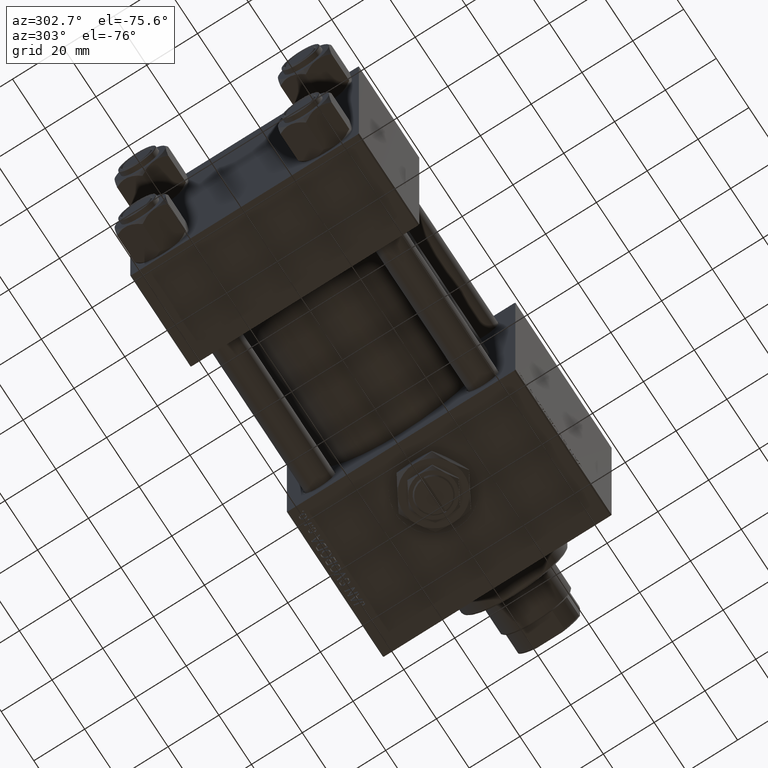
[diagram: clean part render]
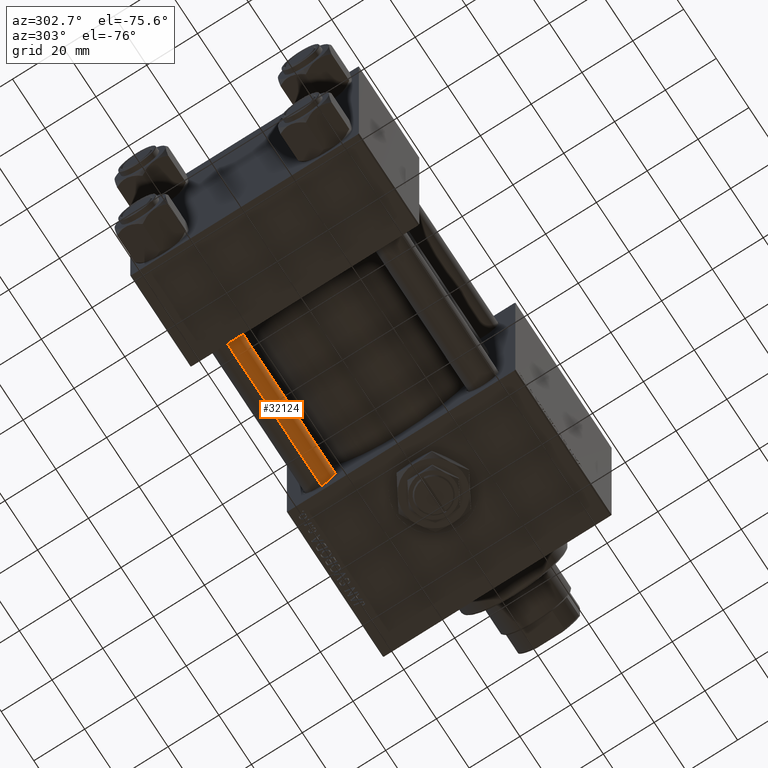
[diagram: same view with one face highlighted and labeled with its STEP entity id]
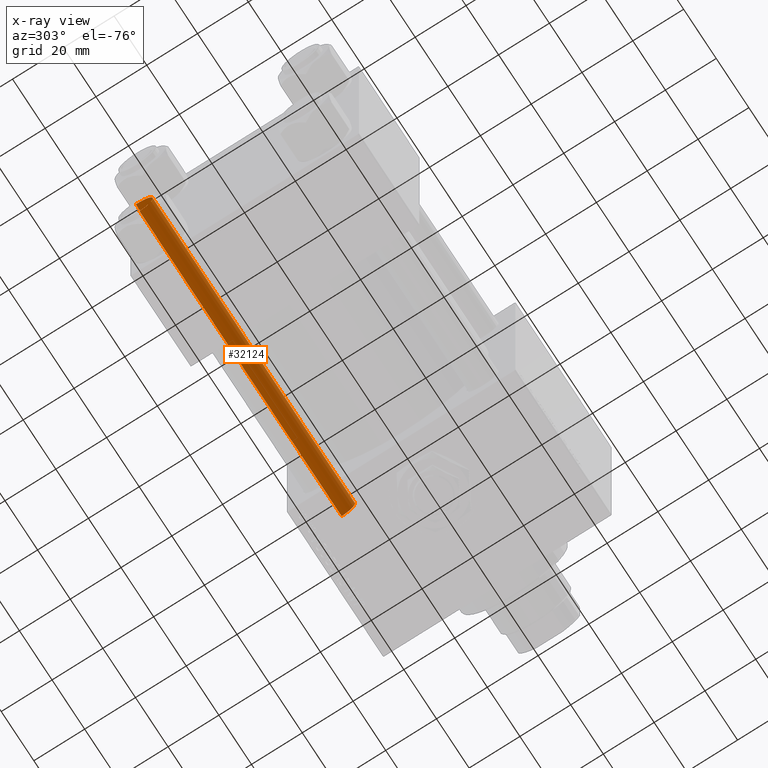
[diagram: x-ray of the same camera — body ghosted, the highlighted face saturated]
A machine part, auxiliary view. The second image highlights one B-rep face of the part: STEP entity #32124.
The next image is the same camera in x-ray: the body ghosted, the highlighted face saturated — about 0% of this face is hidden behind the body in this view.
In plain terms, the highlighted cylindrical surface (edge-blend (fillet) strip) has radius 6 mm, axis along (1, -0, 0).
Its self-contained STEP definition (entity closure, byte-faithful):
#3889 = CARTESIAN_POINT ( 'NONE',  ( 6.000000000000000888, 7.347880794884120722E-16, 125.0000000000000000 ) ) ;
#3957 = FACE_OUTER_BOUND ( 'NONE', #28924, .T. ) ;
#4647 = CARTESIAN_POINT ( 'NONE',  ( -6.000000000000000888, 0.000000000000000000, 0.4999999999999865663 ) ) ;
#4950 = VERTEX_POINT ( 'NONE', #28180 ) ;
#8040 = ORIENTED_EDGE ( 'NONE', *, *, #19581, .T. ) ;
#8315 = VERTEX_POINT ( 'NONE', #4647 ) ;
#9021 = DIRECTION ( 'NONE',  ( -0.000000000000000000, -0.000000000000000000, 1.000000000000000000 ) ) ;
#9540 = DIRECTION ( 'NONE',  ( 1.000000000000000000, 0.000000000000000000, 0.000000000000000000 ) ) ;
#10227 = CARTESIAN_POINT ( 'NONE',  ( 6.000000000000000888, 7.347880794884120722E-16, 124.5000000000000000 ) ) ;
#12302 = LINE ( 'NONE', #3889, #45134 ) ;
#13304 = EDGE_CURVE ( 'NONE', #22390, #4950, #28891, .T. ) ;
#16550 = AXIS2_PLACEMENT_3D ( 'NONE', #37396, #9021, #9540 ) ;
#19581 = EDGE_CURVE ( 'NONE', #8315, #32826, #24945, .T. ) ;
#20001 = DIRECTION ( 'NONE',  ( -1.000000000000000000, 0.000000000000000000, 0.000000000000000000 ) ) ;
#20315 = DIRECTION ( 'NONE',  ( 1.000000000000000000, 0.000000000000000000, 0.000000000000000000 ) ) ;
#22390 = VERTEX_POINT ( 'NONE', #10227 ) ;
#22817 = CARTESIAN_POINT ( 'NONE',  ( -6.000000000000000888, 0.000000000000000000, 125.0000000000000000 ) ) ;
#24945 = CIRCLE ( 'NONE', #16550, 6.000000000000000888 ) ;
#28180 = CARTESIAN_POINT ( 'NONE',  ( -6.000000000000000888, 0.000000000000000000, 124.5000000000000000 ) ) ;
#28891 = CIRCLE ( 'NONE', #33101, 6.000000000000000888 ) ;
#28924 = EDGE_LOOP ( 'NONE', ( #47751, #44039, #34297, #8040 ) ) ;
#29401 = EDGE_CURVE ( 'NONE', #4950, #8315, #30708, .T. ) ;
#30708 = LINE ( 'NONE', #22817, #34786 ) ;
#31761 = DIRECTION ( 'NONE',  ( -0.000000000000000000, -0.000000000000000000, -1.000000000000000000 ) ) ;
#32085 = CARTESIAN_POINT ( 'NONE',  ( 6.000000000000000888, 7.347880794884120722E-16, 0.4999999999999865663 ) ) ;
#32124 = ADVANCED_FACE ( 'NONE', ( #3957 ), #44680, .T. ) ;
#32664 = DIRECTION ( 'NONE',  ( 0.000000000000000000, 0.000000000000000000, -1.000000000000000000 ) ) ;
#32826 = VERTEX_POINT ( 'NONE', #32085 ) ;
#33101 = AXIS2_PLACEMENT_3D ( 'NONE', #40273, #32664, #20315 ) ;
#34036 = AXIS2_PLACEMENT_3D ( 'NONE', #40747, #49152, #20001 ) ;
#34297 = ORIENTED_EDGE ( 'NONE', *, *, #29401, .T. ) ;
#34786 = VECTOR ( 'NONE', #43042, 1000.000000000000000 ) ;
#37396 = CARTESIAN_POINT ( 'NONE',  ( 0.000000000000000000, 0.000000000000000000, 0.4999999999999865663 ) ) ;
#40273 = CARTESIAN_POINT ( 'NONE',  ( 0.000000000000000000, 0.000000000000000000, 124.5000000000000000 ) ) ;
#40747 = CARTESIAN_POINT ( 'NONE',  ( 0.000000000000000000, 0.000000000000000000, 125.0000000000000000 ) ) ;
#40952 = EDGE_CURVE ( 'NONE', #22390, #32826, #12302, .T. ) ;
#43042 = DIRECTION ( 'NONE',  ( -0.000000000000000000, -0.000000000000000000, -1.000000000000000000 ) ) ;
#44039 = ORIENTED_EDGE ( 'NONE', *, *, #13304, .T. ) ;
#44680 = CYLINDRICAL_SURFACE ( 'NONE', #34036, 6.000000000000000888 ) ;
#45134 = VECTOR ( 'NONE', #31761, 1000.000000000000000 ) ;
#47751 = ORIENTED_EDGE ( 'NONE', *, *, #40952, .F. ) ;
#49152 = DIRECTION ( 'NONE',  ( -0.000000000000000000, -0.000000000000000000, -1.000000000000000000 ) ) ;